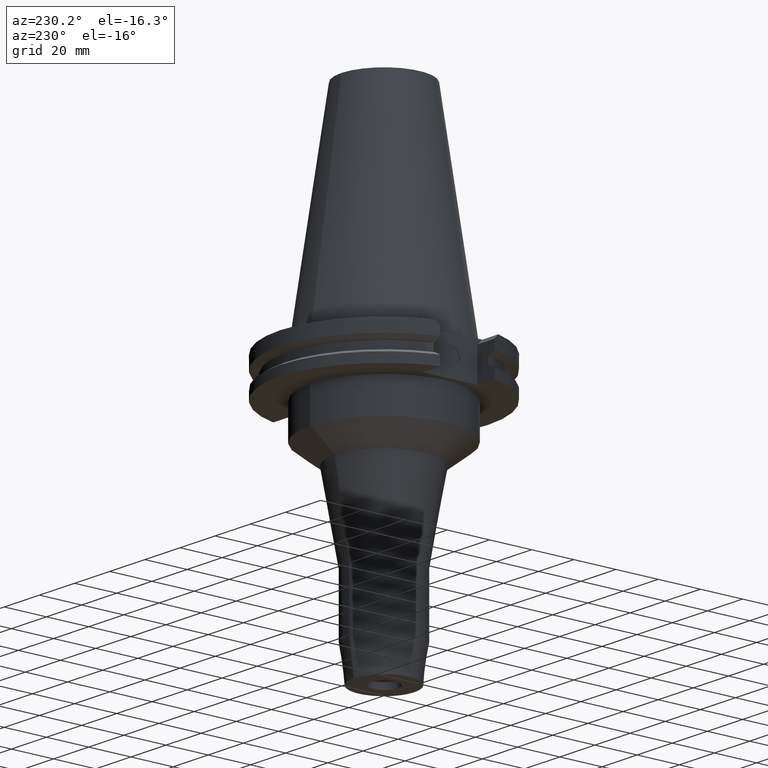
[diagram: clean part render]
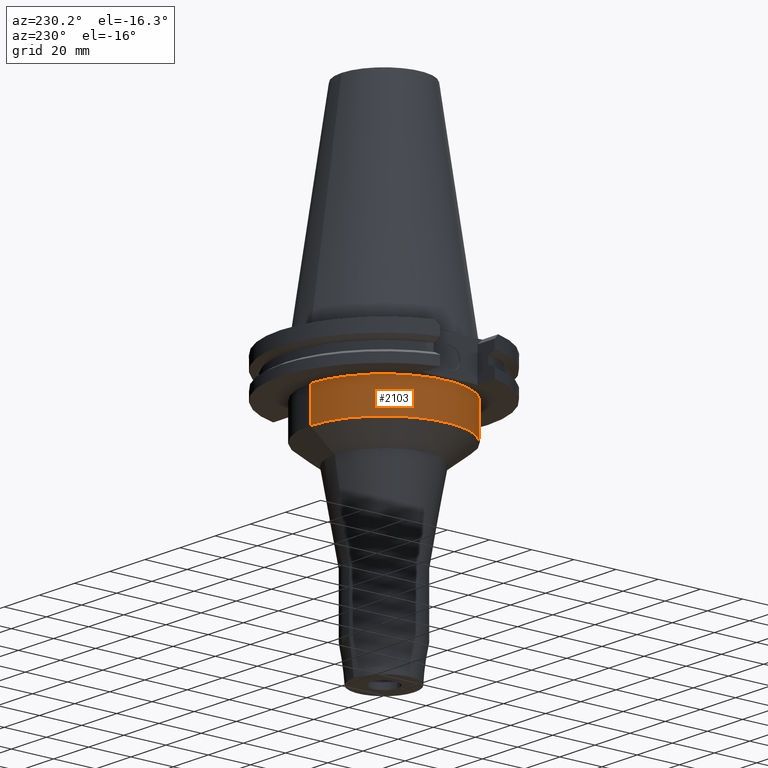
[diagram: same view with one face highlighted and labeled with its STEP entity id]
A machine part, auxiliary view. The second image highlights one B-rep face of the part: STEP entity #2103.
In plain terms, the highlighted cylindrical surface (partial cylindrical patch) has radius 34.925 mm, axis along (0, 0, 1).
Its self-contained STEP definition (entity closure, byte-faithful):
#219=CARTESIAN_POINT('',(0.E0,0.E0,-1.905E1));
#220=DIRECTION('',(0.E0,0.E0,-1.E0));
#221=DIRECTION('',(0.E0,-1.E0,0.E0));
#222=AXIS2_PLACEMENT_3D('',#219,#220,#221);
#816=DIRECTION('',(0.E0,4.321168988635E-14,-1.E0));
#817=VECTOR('',#816,1.595E1);
#818=CARTESIAN_POINT('',(0.E0,-3.4925E1,-1.905E1));
#819=LINE('',#818,#817);
#823=DIRECTION('',(0.E0,-4.321168988635E-14,-1.E0));
#824=VECTOR('',#823,1.595E1);
#825=CARTESIAN_POINT('',(0.E0,3.4925E1,-1.905E1));
#826=LINE('',#825,#824);
#845=CARTESIAN_POINT('',(0.E0,0.E0,-3.5E1));
#846=DIRECTION('',(0.E0,0.E0,1.E0));
#847=DIRECTION('',(0.E0,1.E0,0.E0));
#848=AXIS2_PLACEMENT_3D('',#845,#846,#847);
#1344=CARTESIAN_POINT('',(0.E0,-3.4925E1,-1.905E1));
#1345=CARTESIAN_POINT('',(0.E0,3.4925E1,-1.905E1));
#1346=VERTEX_POINT('',#1344);
#1347=VERTEX_POINT('',#1345);
#1348=CARTESIAN_POINT('',(0.E0,3.4925E1,-3.5E1));
#1349=VERTEX_POINT('',#1348);
#1350=CARTESIAN_POINT('',(0.E0,-3.4925E1,-3.5E1));
#1351=VERTEX_POINT('',#1350);
#2089=CARTESIAN_POINT('',(0.E0,0.E0,-1.3843E2));
#2090=DIRECTION('',(0.E0,0.E0,1.E0));
#2091=DIRECTION('',(0.E0,1.E0,0.E0));
#2092=AXIS2_PLACEMENT_3D('',#2089,#2090,#2091);
#2093=CYLINDRICAL_SURFACE('',#2092,3.4925E1);
#2095=ORIENTED_EDGE('',*,*,#2094,.F.);
#2096=ORIENTED_EDGE('',*,*,#1640,.F.);
#2098=ORIENTED_EDGE('',*,*,#2097,.T.);
#2100=ORIENTED_EDGE('',*,*,#2099,.F.);
#2101=EDGE_LOOP('',(#2095,#2096,#2098,#2100));
#2102=FACE_OUTER_BOUND('',#2101,.F.);
#223=CIRCLE('',#222,3.4925E1);
#849=CIRCLE('',#848,3.4925E1);
#1640=EDGE_CURVE('',#1346,#1347,#223,.T.);
#2094=EDGE_CURVE('',#1347,#1349,#826,.T.);
#2097=EDGE_CURVE('',#1346,#1351,#819,.T.);
#2099=EDGE_CURVE('',#1349,#1351,#849,.T.);
#2103=ADVANCED_FACE('',(#2102),#2093,.T.);